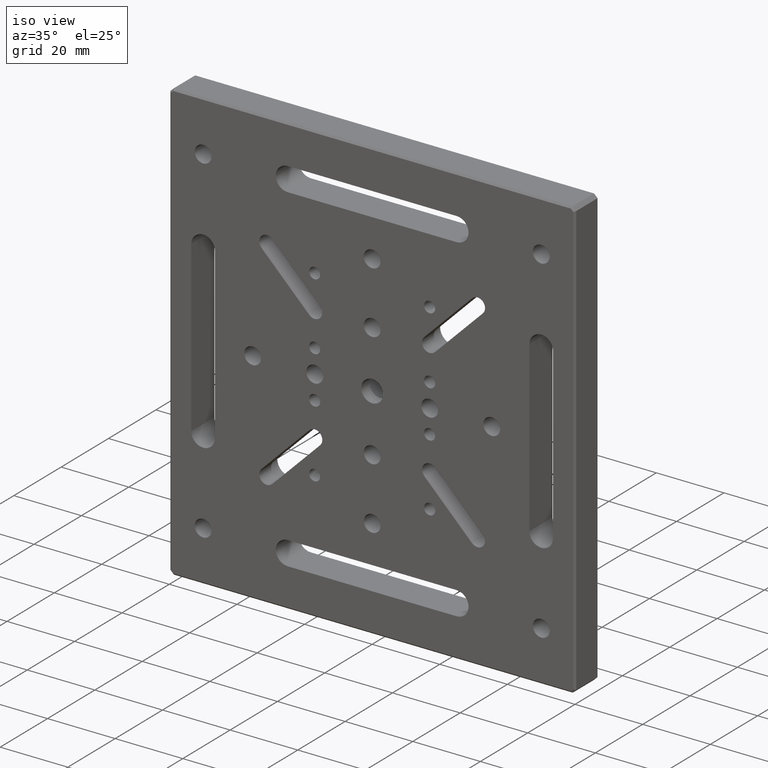
[diagram: clean part render]
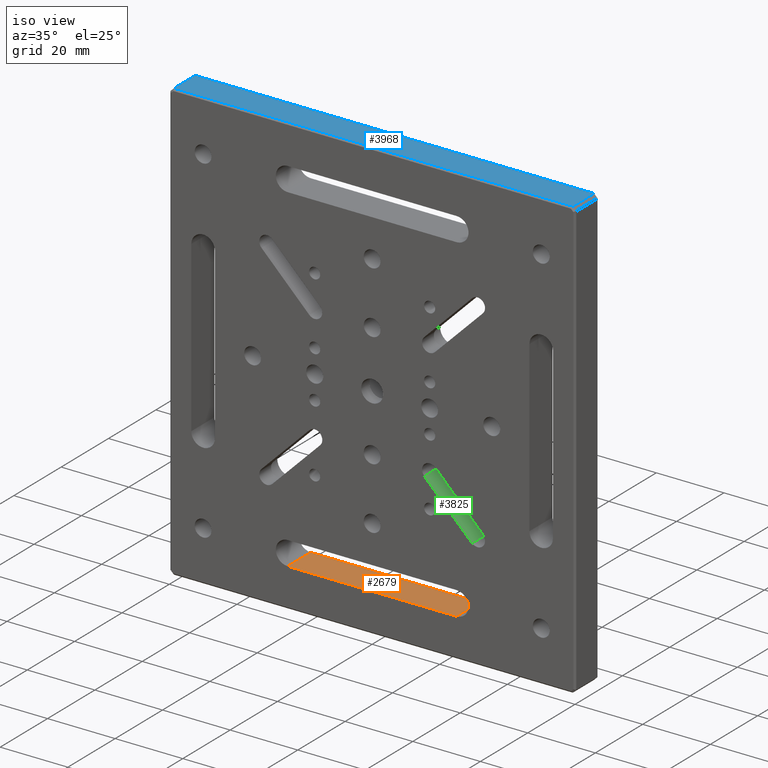
[diagram: same view with three faces highlighted in distinct colors, each labeled with its STEP entity id]
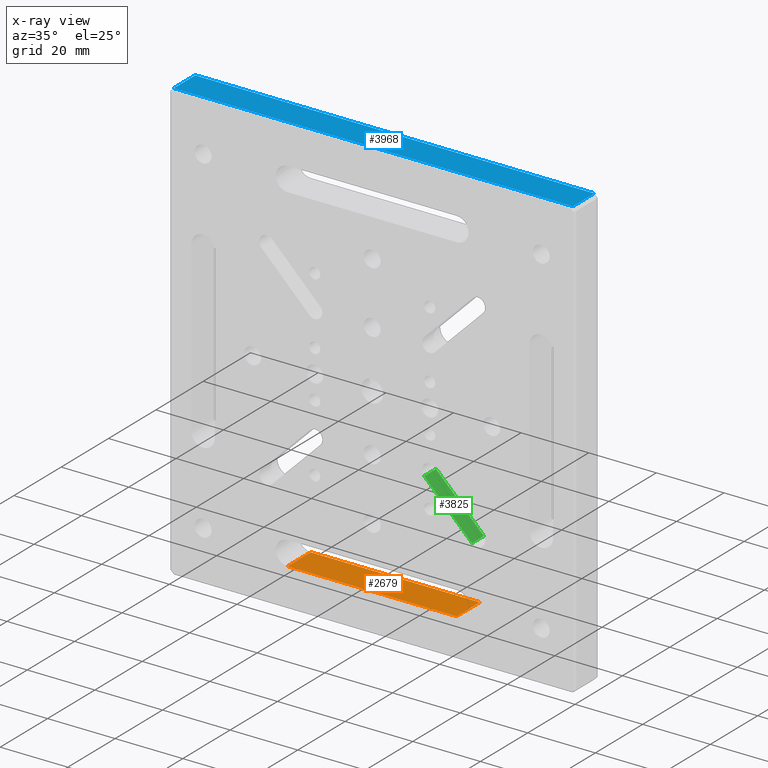
[diagram: x-ray of the same camera — body ghosted, the three highlighted faces saturated]
A machine part, iso view with three faces highlighted in distinct colors.
The next image is the same camera in x-ray (body ghosted, the three faces saturated) — at least one of them is partly hidden behind the body in this view.
Their STEP definitions:

[orange] entity #2679 — the highlighted planar face has unit normal (0, 0, -1).
#176 = ORIENTED_EDGE ( 'NONE', *, *, #2689, .F. ) ;
#379 = EDGE_LOOP ( 'NONE', ( #3736, #4262, #2963, #176 ) ) ;
#383 = VERTEX_POINT ( 'NONE', #4080 ) ;
#653 = DIRECTION ( 'NONE',  ( 0.000000000000000000, 0.000000000000000000, -1.000000000000000000 ) ) ;
#696 = CARTESIAN_POINT ( 'NONE',  ( 0.000000000000000000, 0.000000000000000000, -53.50000000000001421 ) ) ;
#844 = DIRECTION ( 'NONE',  ( -0.000000000000000000, 1.000000000000000000, -0.000000000000000000 ) ) ;
#1101 = VECTOR ( 'NONE', #844, 1000.000000000000000 ) ;
#1108 = EDGE_CURVE ( 'NONE', #1256, #2761, #3898, .T. ) ;
#1185 = DIRECTION ( 'NONE',  ( -1.000000000000000000, 0.000000000000000000, 0.000000000000000000 ) ) ;
#1256 = VERTEX_POINT ( 'NONE', #2312 ) ;
#1332 = PLANE ( 'NONE',  #2809 ) ;
#1348 = FACE_OUTER_BOUND ( 'NONE', #379, .T. ) ;
#1669 = VECTOR ( 'NONE', #4382, 1000.000000000000000 ) ;
#1705 = CARTESIAN_POINT ( 'NONE',  ( -25.00000000000004263, -18.00000000000000355, -53.50000000000001421 ) ) ;
#2014 = DIRECTION ( 'NONE',  ( -1.000000000000000000, 0.000000000000000000, 0.000000000000000000 ) ) ;
#2312 = CARTESIAN_POINT ( 'NONE',  ( 25.00000000000000000, 0.000000000000000000, -53.50000000000001421 ) ) ;
#2389 = LINE ( 'NONE', #696, #3381 ) ;
#2596 = VECTOR ( 'NONE', #1185, 1000.000000000000000 ) ;
#2679 = ADVANCED_FACE ( 'NONE', ( #1348 ), #1332, .F. ) ;
#2689 = EDGE_CURVE ( 'NONE', #1256, #383, #2389, .T. ) ;
#2761 = VERTEX_POINT ( 'NONE', #3393 ) ;
#2809 = AXIS2_PLACEMENT_3D ( 'NONE', #3373, #653, #2973 ) ;
#2963 = ORIENTED_EDGE ( 'NONE', *, *, #4018, .F. ) ;
#2973 = DIRECTION ( 'NONE',  ( -1.000000000000000000, 0.000000000000000000, -0.000000000000000000 ) ) ;
#2994 = LINE ( 'NONE', #1705, #1669 ) ;
#3229 = CARTESIAN_POINT ( 'NONE',  ( 25.00000000000000000, -18.00000000000000355, -53.50000000000001421 ) ) ;
#3373 = CARTESIAN_POINT ( 'NONE',  ( -25.00000000000004263, -18.00000000000000355, -53.50000000000001421 ) ) ;
#3381 = VECTOR ( 'NONE', #2014, 1000.000000000000000 ) ;
#3393 = CARTESIAN_POINT ( 'NONE',  ( 25.00000000000000000, 9.750000000000001776, -53.50000000000001421 ) ) ;
#3736 = ORIENTED_EDGE ( 'NONE', *, *, #1108, .T. ) ;
#3898 = LINE ( 'NONE', #3229, #1101 ) ;
#3924 = CARTESIAN_POINT ( 'NONE',  ( -25.00000000000004263, 9.750000000000001776, -53.50000000000001421 ) ) ;
#4018 = EDGE_CURVE ( 'NONE', #383, #4104, #2994, .T. ) ;
#4080 = CARTESIAN_POINT ( 'NONE',  ( -25.00000000000004263, 0.000000000000000000, -53.50000000000001421 ) ) ;
#4104 = VERTEX_POINT ( 'NONE', #4175 ) ;
#4175 = CARTESIAN_POINT ( 'NONE',  ( -25.00000000000004263, 9.750000000000001776, -53.50000000000001421 ) ) ;
#4258 = LINE ( 'NONE', #3924, #2596 ) ;
#4262 = ORIENTED_EDGE ( 'NONE', *, *, #4271, .T. ) ;
#4271 = EDGE_CURVE ( 'NONE', #2761, #4104, #4258, .T. ) ;
#4382 = DIRECTION ( 'NONE',  ( -0.000000000000000000, 1.000000000000000000, -0.000000000000000000 ) ) ;

[blue] entity #3968 — the highlighted planar face has unit normal (0, 0, -1).
#230 = CARTESIAN_POINT ( 'NONE',  ( -60.00000000000000000, 0.5000000000000281997, 65.00000000000000000 ) ) ;
#476 = LINE ( 'NONE', #2212, #3989 ) ;
#487 = DIRECTION ( 'NONE',  ( 1.000000000000000000, 0.000000000000000000, 0.000000000000000000 ) ) ;
#521 = DIRECTION ( 'NONE',  ( 0.000000000000000000, -1.000000000000000000, 0.000000000000000000 ) ) ;
#669 = VECTOR ( 'NONE', #487, 1000.000000000000000 ) ;
#720 = ORIENTED_EDGE ( 'NONE', *, *, #1003, .T. ) ;
#829 = CARTESIAN_POINT ( 'NONE',  ( -59.00000000000000000, 9.500000000000000000, 65.00000000000000000 ) ) ;
#881 = DIRECTION ( 'NONE',  ( -1.000000000000000000, 0.000000000000000000, 0.000000000000000000 ) ) ;
#1003 = EDGE_CURVE ( 'NONE', #3852, #2703, #3071, .T. ) ;
#1184 = EDGE_CURVE ( 'NONE', #3262, #3852, #2894, .T. ) ;
#1781 = DIRECTION ( 'NONE',  ( 0.000000000000000000, 1.000000000000000000, 0.000000000000000000 ) ) ;
#1796 = VERTEX_POINT ( 'NONE', #829 ) ;
#1834 = EDGE_CURVE ( 'NONE', #1796, #3262, #3528, .T. ) ;
#2023 = AXIS2_PLACEMENT_3D ( 'NONE', #2746, #2702, #2390 ) ;
#2151 = EDGE_LOOP ( 'NONE', ( #720, #4240, #3695, #3152 ) ) ;
#2212 = CARTESIAN_POINT ( 'NONE',  ( -59.00000000000000000, 9.500000000000000000, 65.00000000000000000 ) ) ;
#2238 = VECTOR ( 'NONE', #1781, 1000.000000000000000 ) ;
#2266 = FACE_OUTER_BOUND ( 'NONE', #2151, .T. ) ;
#2390 = DIRECTION ( 'NONE',  ( -1.000000000000000000, 0.000000000000000000, -0.000000000000000000 ) ) ;
#2467 = CARTESIAN_POINT ( 'NONE',  ( -59.00000000000000000, 0.5000000000000281997, 65.00000000000000000 ) ) ;
#2702 = DIRECTION ( 'NONE',  ( 0.000000000000000000, 0.000000000000000000, -1.000000000000000000 ) ) ;
#2703 = VERTEX_POINT ( 'NONE', #4001 ) ;
#2746 = CARTESIAN_POINT ( 'NONE',  ( -60.00000000000000000, 10.00000000000000000, 65.00000000000000000 ) ) ;
#2894 = LINE ( 'NONE', #230, #669 ) ;
#3007 = EDGE_CURVE ( 'NONE', #2703, #1796, #476, .T. ) ;
#3071 = LINE ( 'NONE', #4141, #2238 ) ;
#3152 = ORIENTED_EDGE ( 'NONE', *, *, #1184, .T. ) ;
#3240 = CARTESIAN_POINT ( 'NONE',  ( -59.00000000000000000, 10.00000000000000000, 65.00000000000000000 ) ) ;
#3262 = VERTEX_POINT ( 'NONE', #2467 ) ;
#3269 = CARTESIAN_POINT ( 'NONE',  ( 58.99999999999997158, 0.5000000000000281997, 65.00000000000000000 ) ) ;
#3528 = LINE ( 'NONE', #3240, #4283 ) ;
#3623 = PLANE ( 'NONE',  #2023 ) ;
#3695 = ORIENTED_EDGE ( 'NONE', *, *, #1834, .T. ) ;
#3852 = VERTEX_POINT ( 'NONE', #3269 ) ;
#3968 = ADVANCED_FACE ( 'NONE', ( #2266 ), #3623, .F. ) ;
#3989 = VECTOR ( 'NONE', #881, 1000.000000000000000 ) ;
#4001 = CARTESIAN_POINT ( 'NONE',  ( 58.99999999999997158, 9.500000000000000000, 65.00000000000000000 ) ) ;
#4141 = CARTESIAN_POINT ( 'NONE',  ( 58.99999999999997158, 10.00000000000000000, 65.00000000000000000 ) ) ;
#4240 = ORIENTED_EDGE ( 'NONE', *, *, #3007, .T. ) ;
#4283 = VECTOR ( 'NONE', #521, 1000.000000000000000 ) ;

[green] entity #3825 — the highlighted planar face has unit normal (-0.7071, 0, -0.7071).
#122 = EDGE_CURVE ( 'NONE', #2741, #2676, #3083, .T. ) ;
#243 = DIRECTION ( 'NONE',  ( -0.7071067811865459074, 0.000000000000000000, -0.7071067811865491270 ) ) ;
#572 = CARTESIAN_POINT ( 'NONE',  ( 15.40900974233027299, 0.000000000000000000, -18.59099025766974123 ) ) ;
#599 = AXIS2_PLACEMENT_3D ( 'NONE', #572, #243, #1228 ) ;
#631 = CARTESIAN_POINT ( 'NONE',  ( 29.55114536606125597, 0.000000000000000000, -32.73312588140066026 ) ) ;
#680 = DIRECTION ( 'NONE',  ( -0.7071067811865490160, -0.000000000000000000, 0.7071067811865460184 ) ) ;
#731 = DIRECTION ( 'NONE',  ( -0.000000000000000000, 1.000000000000000000, -0.000000000000000000 ) ) ;
#965 = CARTESIAN_POINT ( 'NONE',  ( 15.40900974233027299, 5.000000000000000000, -18.59099025766974123 ) ) ;
#1052 = ORIENTED_EDGE ( 'NONE', *, *, #122, .F. ) ;
#1228 = DIRECTION ( 'NONE',  ( -0.7071067811865491270, 0.000000000000000000, 0.7071067811865459074 ) ) ;
#1442 = EDGE_CURVE ( 'NONE', #2741, #3570, #2635, .T. ) ;
#1637 = DIRECTION ( 'NONE',  ( -0.000000000000000000, 1.000000000000000000, -0.000000000000000000 ) ) ;
#1723 = VECTOR ( 'NONE', #1637, 1000.000000000000000 ) ;
#2037 = CARTESIAN_POINT ( 'NONE',  ( 29.55114536606125597, 0.000000000000000000, -32.73312588140066026 ) ) ;
#2197 = ORIENTED_EDGE ( 'NONE', *, *, #3111, .T. ) ;
#2319 = DIRECTION ( 'NONE',  ( -0.7071067811865490160, -0.000000000000000000, 0.7071067811865460184 ) ) ;
#2447 = LINE ( 'NONE', #2801, #3577 ) ;
#2544 = CARTESIAN_POINT ( 'NONE',  ( 15.40900974233027299, 5.000000000000000000, -18.59099025766974123 ) ) ;
#2576 = FACE_OUTER_BOUND ( 'NONE', #4371, .T. ) ;
#2577 = ORIENTED_EDGE ( 'NONE', *, *, #1442, .T. ) ;
#2635 = LINE ( 'NONE', #2037, #1723 ) ;
#2676 = VERTEX_POINT ( 'NONE', #4401 ) ;
#2741 = VERTEX_POINT ( 'NONE', #631 ) ;
#2792 = ORIENTED_EDGE ( 'NONE', *, *, #3242, .F. ) ;
#2801 = CARTESIAN_POINT ( 'NONE',  ( 15.40900974233027299, 0.000000000000000000, -18.59099025766974123 ) ) ;
#2967 = VECTOR ( 'NONE', #680, 1000.000000000000114 ) ;
#2974 = PLANE ( 'NONE',  #599 ) ;
#2990 = VERTEX_POINT ( 'NONE', #2544 ) ;
#3083 = LINE ( 'NONE', #3419, #2967 ) ;
#3111 = EDGE_CURVE ( 'NONE', #3570, #2990, #4017, .T. ) ;
#3242 = EDGE_CURVE ( 'NONE', #2676, #2990, #2447, .T. ) ;
#3362 = CARTESIAN_POINT ( 'NONE',  ( 29.55114536606125597, 5.000000000000000000, -32.73312588140066026 ) ) ;
#3419 = CARTESIAN_POINT ( 'NONE',  ( 15.40900974233027299, 0.000000000000000000, -18.59099025766974123 ) ) ;
#3570 = VERTEX_POINT ( 'NONE', #3362 ) ;
#3577 = VECTOR ( 'NONE', #731, 1000.000000000000000 ) ;
#3825 = ADVANCED_FACE ( 'NONE', ( #2576 ), #2974, .F. ) ;
#4017 = LINE ( 'NONE', #965, #4200 ) ;
#4200 = VECTOR ( 'NONE', #2319, 1000.000000000000114 ) ;
#4371 = EDGE_LOOP ( 'NONE', ( #2197, #2792, #1052, #2577 ) ) ;
#4401 = CARTESIAN_POINT ( 'NONE',  ( 15.40900974233027299, 0.000000000000000000, -18.59099025766974123 ) ) ;